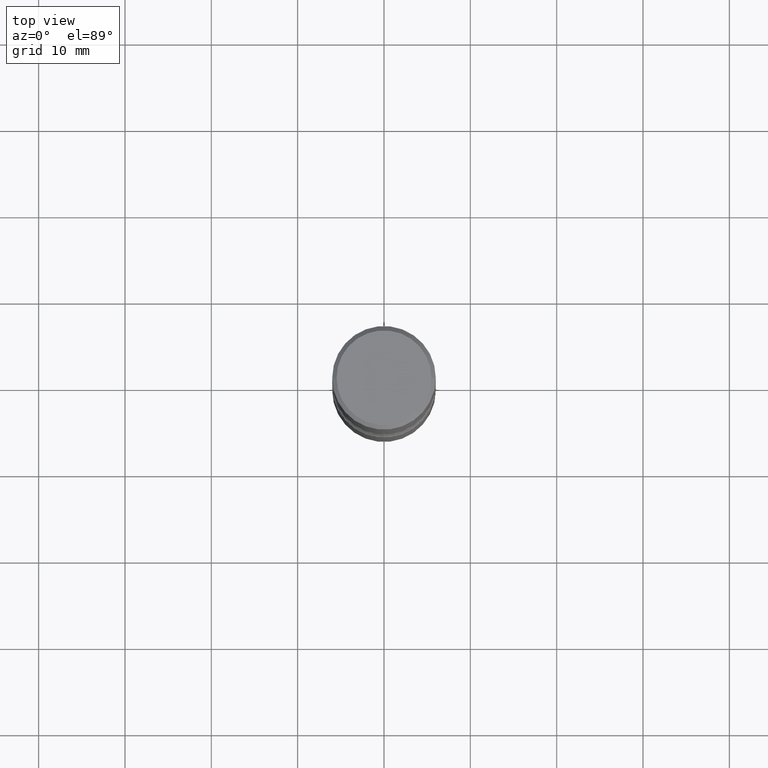
[diagram: clean part render]
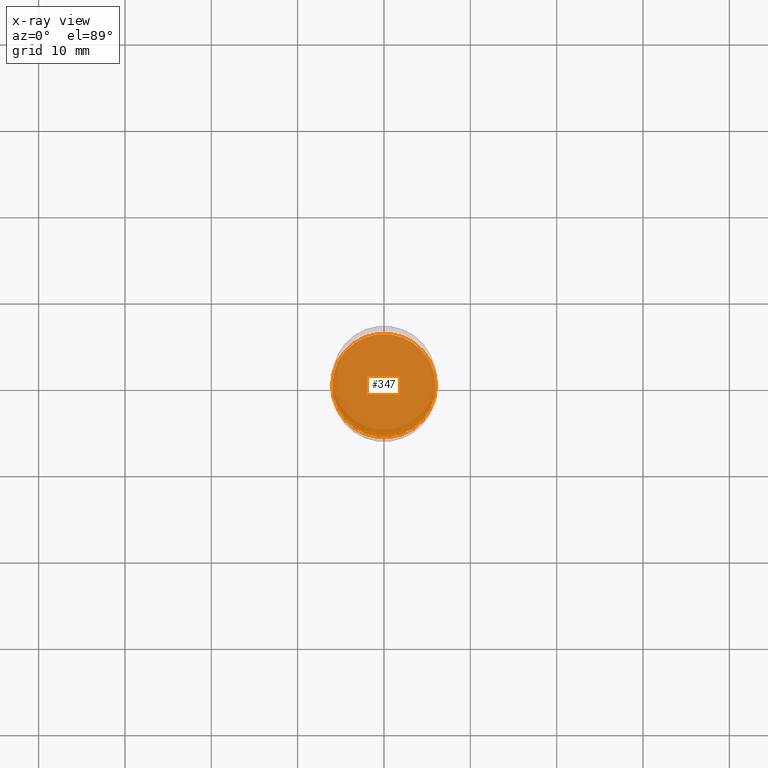
[diagram: x-ray — body ghosted, one internal face saturated and labeled with its STEP entity id]
A machine part, top view, then the same camera in x-ray: the body is ghosted and one INTERNAL B-rep face — a face not visible from any outside direction — is saturated and labeled: STEP entity #347.
In plain terms, the highlighted planar face has unit normal (0, -0, -1).
Its self-contained STEP definition (entity closure, byte-faithful):
#4 = ORIENTED_EDGE ( 'NONE', *, *, #502, .T. ) ;
#22 = CIRCLE ( 'NONE', #349, 0.2362000000000002431 ) ;
#59 = DIRECTION ( 'NONE',  ( 1.000000000000000000, -6.982962677686265922E-15, 0.000000000000000000 ) ) ;
#67 = EDGE_CURVE ( 'NONE', #353, #511, #22, .T. ) ;
#85 = PLANE ( 'NONE',  #182 ) ;
#127 = ORIENTED_EDGE ( 'NONE', *, *, #67, .T. ) ;
#132 = EDGE_LOOP ( 'NONE', ( #4, #127 ) ) ;
#141 = CARTESIAN_POINT ( 'NONE',  ( 5.102715210985905155E-29, -7.285324961630105839E-15, -2.086599999999999344 ) ) ;
#182 = AXIS2_PLACEMENT_3D ( 'NONE', #299, #358, #426 ) ;
#186 = CARTESIAN_POINT ( 'NONE',  ( 0.2362000000000002431, -8.934700746099602364E-15, -2.086599999999999344 ) ) ;
#188 = DIRECTION ( 'NONE',  ( 1.000000000000000000, -6.982962677686265922E-15, 0.000000000000000000 ) ) ;
#219 = CIRCLE ( 'NONE', #331, 0.2362000000000002431 ) ;
#279 = DIRECTION ( 'NONE',  ( -2.445468806185136597E-29, 3.491481338843145583E-15, 1.000000000000000000 ) ) ;
#299 = CARTESIAN_POINT ( 'NONE',  ( 5.102715210985905155E-29, -7.285324961630105839E-15, -2.086599999999999344 ) ) ;
#318 = DIRECTION ( 'NONE',  ( -2.445468806185136597E-29, 3.491481338843145583E-15, 1.000000000000000000 ) ) ;
#331 = AXIS2_PLACEMENT_3D ( 'NONE', #488, #318, #188 ) ;
#340 = CARTESIAN_POINT ( 'NONE',  ( -0.2362000000000002431, -7.634002511030135730E-15, -2.086599999999999344 ) ) ;
#347 = ADVANCED_FACE ( 'NONE', ( #483 ), #85, .F. ) ;
#349 = AXIS2_PLACEMENT_3D ( 'NONE', #141, #279, #59 ) ;
#353 = VERTEX_POINT ( 'NONE', #340 ) ;
#358 = DIRECTION ( 'NONE',  ( 2.438088387897960049E-29, -3.491481338843145188E-15, -1.000000000000000000 ) ) ;
#426 = DIRECTION ( 'NONE',  ( -1.000000000000000000, 6.982962677686265922E-15, -4.876176775795935793E-29 ) ) ;
#483 = FACE_OUTER_BOUND ( 'NONE', #132, .T. ) ;
#488 = CARTESIAN_POINT ( 'NONE',  ( 5.102715210985905155E-29, -7.285324961630105839E-15, -2.086599999999999344 ) ) ;
#502 = EDGE_CURVE ( 'NONE', #511, #353, #219, .T. ) ;
#511 = VERTEX_POINT ( 'NONE', #186 ) ;